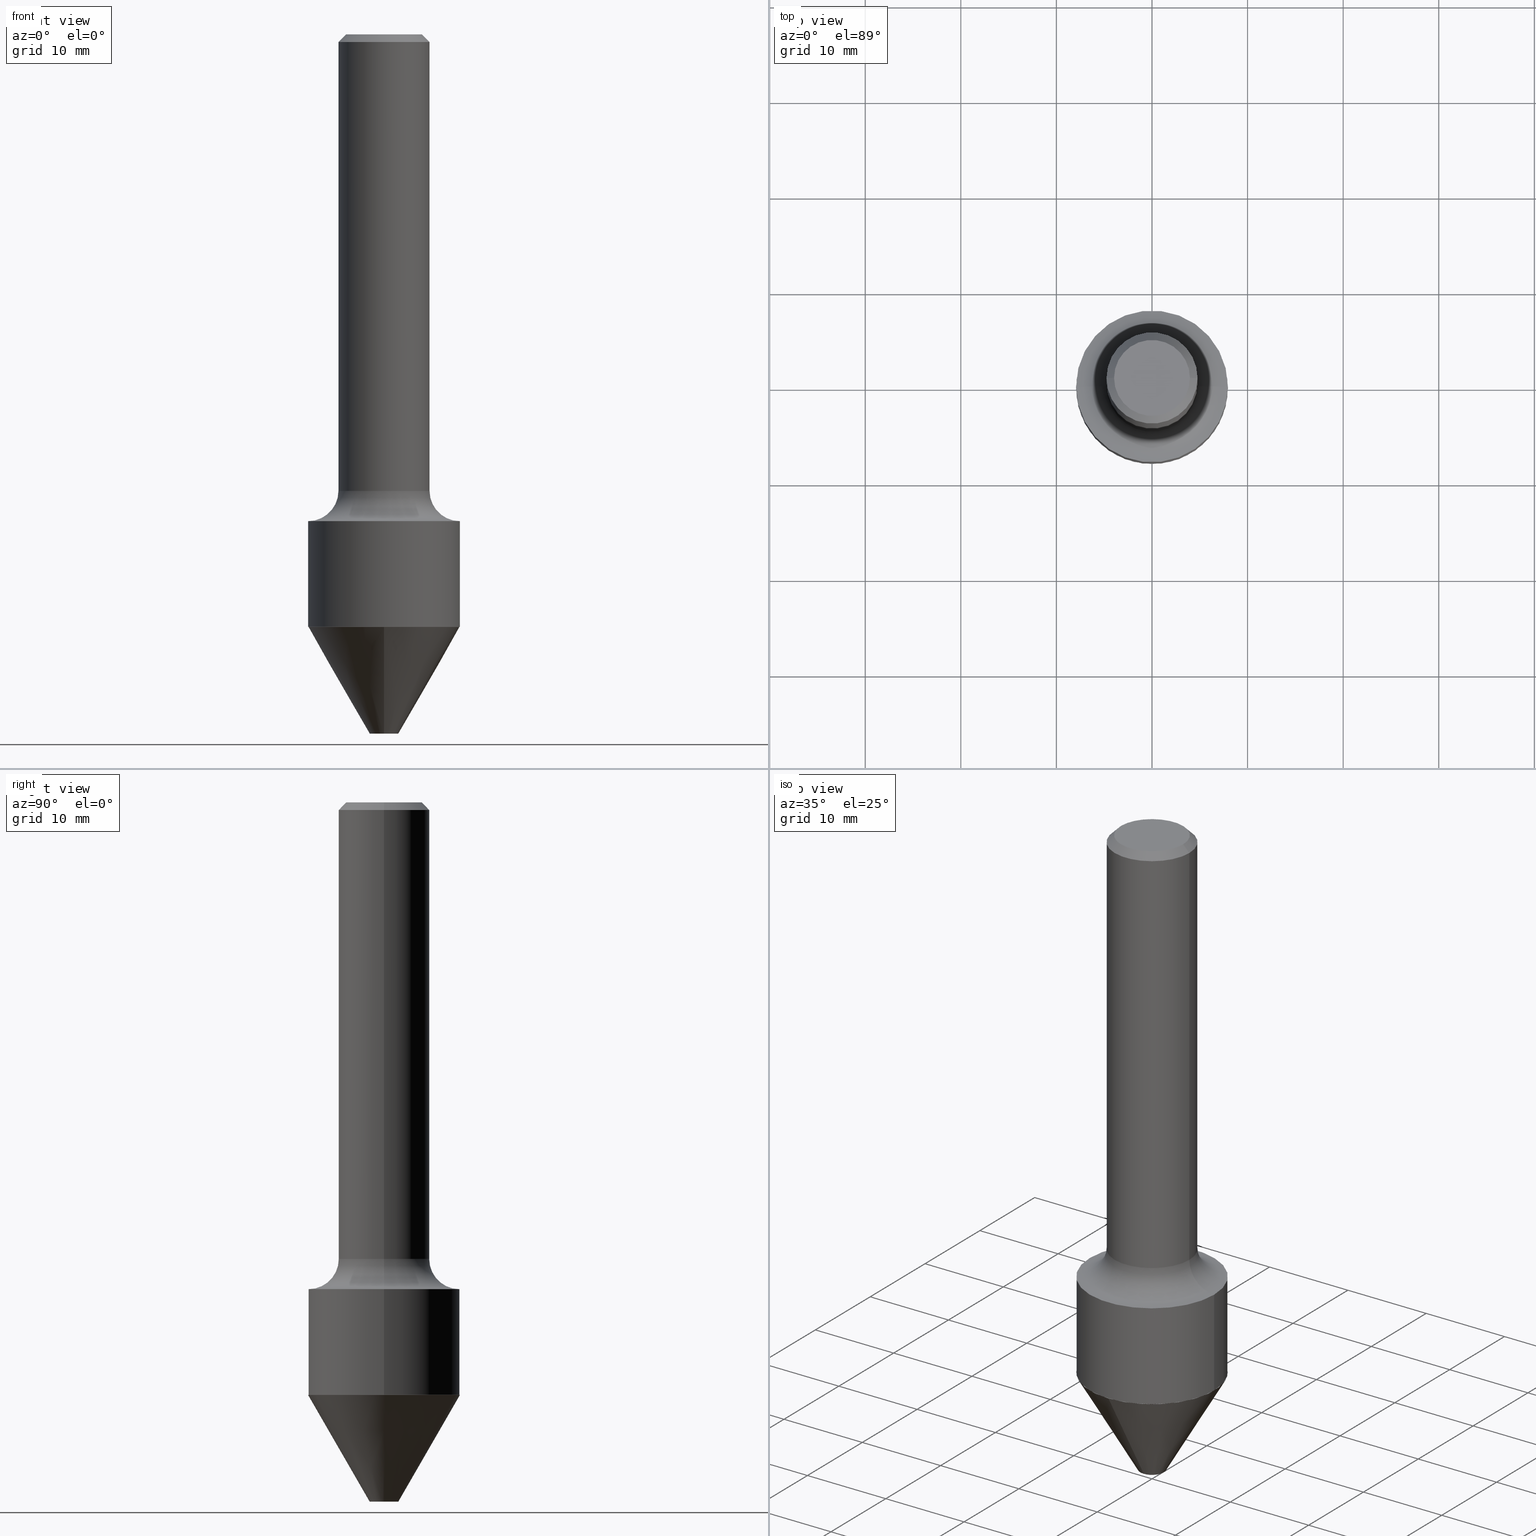
[diagram: canonical four-view strip — front | top / right | iso, engineering-drawing reading convention]
A machine part, canonical four-view strip (front | top / right | iso — engineering-drawing reading convention). The complete STEP part file that produces these views, byte-faithful:
ISO-10303-21;
HEADER;
FILE_DESCRIPTION (( 'STEP AP203' ),
    '1' );
FILE_NAME ('74140.STEP',
    '2025-06-20T12:29:15',
    ( '' ),
    ( '' ),
    'SwSTEP 2.0',
    'SolidWorks 2024',
    '' );
FILE_SCHEMA (( 'CONFIG_CONTROL_DESIGN' ));
ENDSEC;

DATA;
#1 = DIRECTION ( 'NONE',  ( 6.982962677686265922E-15, 1.000000000000000000, -3.502369222646490578E-15 ) ) ;
#2 = ORIENTED_EDGE ( 'NONE', *, *, #251, .F. ) ;
#3 = CONICAL_SURFACE ( 'NONE', #138, 0.3124999999999998335, 0.5235987755983375624 ) ;
#4 = EDGE_CURVE ( 'NONE', #167, #477, #267, .T. ) ;
#5 = CIRCLE ( 'NONE', #432, 0.1875000000000002498 ) ;
#6 = CYLINDRICAL_SURFACE ( 'NONE', #380, 0.1875000000000001110 ) ;
#7 = ORIENTED_EDGE ( 'NONE', *, *, #4, .T. ) ;
#8 = LINE ( 'NONE', #89, #111 ) ;
#9 = ORIENTED_EDGE ( 'NONE', *, *, #39, .T. ) ;
#10 = CARTESIAN_POINT ( 'NONE',  ( 7.629862675297681829E-31, -1.089342177719069380E-16, -0.03120000000000022755 ) ) ;
#11 = EDGE_LOOP ( 'NONE', ( #323, #367, #172, #216 ) ) ;
#12 = AXIS2_PLACEMENT_3D ( 'NONE', #452, #441, #250 ) ;
#13 = CARTESIAN_POINT ( 'NONE',  ( -1.871772216193331159E-46, 2.672394653685611172E-32, 7.654042494670965249E-18 ) ) ;
#14 = ORIENTED_EDGE ( 'NONE', *, *, #337, .T. ) ;
#15 = CC_DESIGN_DATE_AND_TIME_ASSIGNMENT ( #511, #105, ( #217 ) ) ;
#16 = DIRECTION ( 'NONE',  ( -6.982962677686265133E-15, -1.000000000000000000, 3.496765431890258892E-15 ) ) ;
#17 = CYLINDRICAL_SURFACE ( 'NONE', #213, 0.3125000000000000000 ) ;
#18 = EDGE_CURVE ( 'NONE', #94, #209, #230, .T. ) ;
#19 = FACE_OUTER_BOUND ( 'NONE', #132, .T. ) ;
#20 = VECTOR ( 'NONE', #169, 39.37007874015748143 ) ;
#21 = DATE_AND_TIME ( #419, #272 ) ;
#22 = AXIS2_PLACEMENT_3D ( 'NONE', #232, #158, #428 ) ;
#23 = CARTESIAN_POINT ( 'NONE',  ( 0.000000000000000000, 0.000000000000000000, 0.000000000000000000 ) ) ;
#24 = APPROVAL_ROLE ( '' ) ;
#25 = EDGE_CURVE ( 'NONE', #86, #493, #312, .T. ) ;
#26 = DIRECTION ( 'NONE',  ( 1.000000000000000000, -6.982962677686269077E-15, 0.000000000000000000 ) ) ;
#27 = CARTESIAN_POINT ( 'NONE',  ( 5.939732351074985838E-29, -8.564652793296501748E-15, -2.440925120281329797 ) ) ;
#28 = ORIENTED_EDGE ( 'NONE', *, *, #483, .T. ) ;
#29 = DATE_AND_TIME ( #190, #30 ) ;
#30 = LOCAL_TIME ( 8, 29, 15.00000000000000000, #244 ) ;
#31 = CIRCLE ( 'NONE', #139, 0.3120000000000000551 ) ;
#32 = DIRECTION ( 'NONE',  ( 1.000000000000000000, -6.982962677686269866E-15, 0.000000000000000000 ) ) ;
#33 = PRODUCT_DEFINITION_SHAPE ( 'NONE', 'NONE',  #302 ) ;
#34 = AXIS2_PLACEMENT_3D ( 'NONE', #507, #422, #345 ) ;
#35 = CC_DESIGN_PERSON_AND_ORGANIZATION_ASSIGNMENT ( #145, #225, ( #439 ) ) ;
#36 = DIRECTION ( 'NONE',  ( -2.534628000477946415E-29, 3.363800297989649412E-15, 1.000000000000000000 ) ) ;
#37 = ORIENTED_EDGE ( 'NONE', *, *, #462, .F. ) ;
#38 = CARTESIAN_POINT ( 'NONE',  ( 5.938465037074746188E-29, -8.562970893147506322E-15, -2.440425120281329630 ) ) ;
#39 = EDGE_CURVE ( 'NONE', #47, #362, #43, .T. ) ;
#40 = DIRECTION ( 'NONE',  ( -1.000000000000000000, 7.105427357601001859E-15, 0.000000000000000000 ) ) ;
#41 = CC_DESIGN_APPROVAL ( #222, ( #217 ) ) ;
#42 = DIRECTION ( 'NONE',  ( -1.000000000000000000, 6.982962677686265922E-15, 0.000000000000000000 ) ) ;
#43 = CIRCLE ( 'NONE', #393, 0.1249999999999996947 ) ;
#44 = CARTESIAN_POINT ( 'NONE',  ( -0.1875000000000000278, 1.200371284294268058E-15, -0.03120000000000022755 ) ) ;
#45 = ORIENTED_EDGE ( 'NONE', *, *, #483, .F. ) ;
#46 = DIRECTION ( 'NONE',  ( -2.445468806185136597E-29, 3.491481338843145583E-15, 1.000000000000000000 ) ) ;
#47 = VERTEX_POINT ( 'NONE', #186 ) ;
#48 = AXIS2_PLACEMENT_3D ( 'NONE', #178, #340, #26 ) ;
#49 = DIRECTION ( 'NONE',  ( 2.534628000477945855E-29, -3.363800297989649412E-15, -1.000000000000000000 ) ) ;
#50 = ORIENTED_EDGE ( 'NONE', *, *, #153, .F. ) ;
#51 = DIRECTION ( 'NONE',  ( 1.000000000000000000, -6.982962677686265133E-15, 0.000000000000000000 ) ) ;
#52 = VECTOR ( 'NONE', #226, 39.37007874015748143 ) ;
#53 = ORIENTED_EDGE ( 'NONE', *, *, #249, .F. ) ;
#54 = EDGE_CURVE ( 'NONE', #47, #96, #102, .T. ) ;
#55 = PLANE ( 'NONE',  #188 ) ;
#56 = ORIENTED_EDGE ( 'NONE', *, *, #488, .F. ) ;
#57 = AXIS2_PLACEMENT_3D ( 'NONE', #509, #278, #235 ) ;
#58 = APPROVAL_ROLE ( '' ) ;
#59 = DIRECTION ( 'NONE',  ( -2.445468806185136877E-29, 3.491481338843145188E-15, 1.000000000000000000 ) ) ;
#60 = ADVANCED_FACE ( 'NONE', ( #336 ), #309, .F. ) ;
#61 = DIRECTION ( 'NONE',  ( 2.534628000477945855E-29, -3.363800297989649412E-15, -1.000000000000000000 ) ) ;
#62 = ADVANCED_FACE ( 'NONE', ( #19 ), #100, .T. ) ;
#63 = DATE_AND_TIME ( #421, #313 ) ;
#64 = DIRECTION ( 'NONE',  ( -2.445468806185136597E-29, 3.491481338843145583E-15, 1.000000000000000000 ) ) ;
#65 = ADVANCED_FACE ( 'NONE', ( #346 ), #508, .T. ) ;
#66 = DIRECTION ( 'NONE',  ( 1.000000000000000000, -6.982962677686266711E-15, 4.876176775795936353E-29 ) ) ;
#67 = DIRECTION ( 'NONE',  ( 1.000000000000000000, 0.000000000000000000, 0.000000000000000000 ) ) ;
#68 = CARTESIAN_POINT ( 'NONE',  ( 2.178684355438174504E-15, 0.3119999999999915063, -2.440425120281330962 ) ) ;
#69 = DIRECTION ( 'NONE',  ( -6.982962677686265922E-15, -1.000000000000000000, 0.000000000000000000 ) ) ;
#70 = APPROVAL ( #456, 'UNSPECIFIED' ) ;
#71 = CIRCLE ( 'NONE', #113, 0.3120000000000000551 ) ;
#72 = DIRECTION ( 'NONE',  ( 1.000000000000000000, -6.982962677686266711E-15, 4.876046809215620980E-29 ) ) ;
#73 = DIRECTION ( 'NONE',  ( 1.000000000000000000, -6.982962677686269077E-15, 0.000000000000000000 ) ) ;
#74 = EDGE_LOOP ( 'NONE', ( #236, #7, #405, #331 ) ) ;
#75 = AXIS2_PLACEMENT_3D ( 'NONE', #23, #182, #137 ) ;
#76 = DIRECTION ( 'NONE',  ( 1.000000000000000000, -6.982962677686269866E-15, 0.000000000000000000 ) ) ;
#77 = ORIENTED_EDGE ( 'NONE', *, *, #350, .T. ) ;
#78 = COORDINATED_UNIVERSAL_TIME_OFFSET ( 5, 0, .BEHIND. ) ;
#79 = FACE_OUTER_BOUND ( 'NONE', #258, .T. ) ;
#80 = VECTOR ( 'NONE', #93, 39.37007874015748143 ) ;
#81 = LINE ( 'NONE', #44, #80 ) ;
#82 = FACE_OUTER_BOUND ( 'NONE', #240, .T. ) ;
#83 = ORIENTED_EDGE ( 'NONE', *, *, #159, .T. ) ;
#84 = CC_DESIGN_PERSON_AND_ORGANIZATION_ASSIGNMENT ( #351, #435, ( #217 ) ) ;
#85 = DIRECTION ( 'NONE',  ( -2.445468806185136597E-29, 3.491481338843145583E-15, 1.000000000000000000 ) ) ;
#86 = VERTEX_POINT ( 'NONE', #104 ) ;
#87 = CONICAL_SURFACE ( 'NONE', #130, 0.3120000000000000551, 0.7853981633970383847 ) ;
#88 = CIRCLE ( 'NONE', #506, 0.05899999999999981648 ) ;
#89 = CARTESIAN_POINT ( 'NONE',  ( 0.3120000000000000551, -1.069938312174441774E-14, -2.440425120281329630 ) ) ;
#90 = ADVANCED_FACE ( 'NONE', ( #424 ), #92, .T. ) ;
#91 = VERTEX_POINT ( 'NONE', #274 ) ;
#92 = CONICAL_SURFACE ( 'NONE', #283, 0.3124999999999998335, 0.5235987755983375624 ) ;
#93 = DIRECTION ( 'NONE',  ( -0.7071067811865444641, 2.468850131082224717E-15, -0.7071067811865505703 ) ) ;
#94 = VERTEX_POINT ( 'NONE', #144 ) ;
#95 = FACE_OUTER_BOUND ( 'NONE', #334, .T. ) ;
#96 = VERTEX_POINT ( 'NONE', #377 ) ;
#97 = AXIS2_PLACEMENT_3D ( 'NONE', #324, #239, #72 ) ;
#98 = DATE_AND_TIME ( #335, #148 ) ;
#99 = ORIENTED_EDGE ( 'NONE', *, *, #151, .F. ) ;
#100 = CONICAL_SURFACE ( 'NONE', #193, 0.3120000000000000551, 0.7853981633977896726 ) ;
#101 = DIRECTION ( 'NONE',  ( -2.445468806185136597E-29, 3.491481338843145583E-15, 1.000000000000000000 ) ) ;
#102 = LINE ( 'NONE', #187, #168 ) ;
#103 = CONICAL_SURFACE ( 'NONE', #448, 0.3120000000000000551, 0.7853981633970383847 ) ;
#104 = CARTESIAN_POINT ( 'NONE',  ( -0.3120000000000000551, -6.301156203560677438E-15, -2.440425120281329630 ) ) ;
#105 = DATE_TIME_ROLE ( 'classification_date' ) ;
#106 = DIRECTION ( 'NONE',  ( 1.000000000000000000, -6.982962677686265133E-15, 0.000000000000000000 ) ) ;
#107 = APPROVAL ( #140, 'UNSPECIFIED' ) ;
#108 = DIRECTION ( 'NONE',  ( -2.445468806185136597E-29, 3.491481338843145583E-15, 1.000000000000000000 ) ) ;
#109 = EDGE_CURVE ( 'NONE', #327, #294, #427, .T. ) ;
#110 = SHAPE_DEFINITION_REPRESENTATION ( #33, #277 ) ;
#111 = VECTOR ( 'NONE', #253, 39.37007874015748143 ) ;
#112 = EDGE_CURVE ( 'NONE', #398, #362, #343, .T. ) ;
#113 = AXIS2_PLACEMENT_3D ( 'NONE', #285, #436, #76 ) ;
#114 = DIRECTION ( 'NONE',  ( -6.982962677686265922E-15, -1.000000000000000000, 0.000000000000000000 ) ) ;
#115 = DIRECTION ( 'NONE',  ( 1.000000000000000000, -6.982962677686265922E-15, 0.000000000000000000 ) ) ;
#116 = ORIENTED_EDGE ( 'NONE', *, *, #303, .T. ) ;
#117 = ADVANCED_FACE ( 'NONE', ( #378 ), #418, .T. ) ;
#118 = DIRECTION ( 'NONE',  ( -2.445468806185136597E-29, 3.491481338843145583E-15, 1.000000000000000000 ) ) ;
#119 = ORIENTED_EDGE ( 'NONE', *, *, #350, .F. ) ;
#120 = CARTESIAN_POINT ( 'NONE',  ( 0.3125000000000000000, -1.070112886241384003E-14, -2.439925120281329907 ) ) ;
#121 = AXIS2_PLACEMENT_3D ( 'NONE', #391, #475, #114 ) ;
#122 = DIRECTION ( 'NONE',  ( -2.445468806185136597E-29, 3.491481338843145583E-15, 1.000000000000000000 ) ) ;
#123 = ORIENTED_EDGE ( 'NONE', *, *, #153, .T. ) ;
#124 = ADVANCED_FACE ( 'NONE', ( #342 ), #17, .T. ) ;
#125 = CLOSED_SHELL ( 'NONE', ( #392, #205, #62, #124, #451, #227, #117, #173, #444, #273, #65, #480 ) ) ;
#126 = DIRECTION ( 'NONE',  ( 1.000000000000000000, -6.982962677686265922E-15, 0.000000000000000000 ) ) ;
#127 = ORIENTED_EDGE ( 'NONE', *, *, #366, .F. ) ;
#128 = CARTESIAN_POINT ( 'NONE',  ( 5.967983505478601309E-29, -8.520698766306300822E-15, -2.440425120281329630 ) ) ;
#129 = ORIENTED_EDGE ( 'NONE', *, *, #358, .F. ) ;
#130 = AXIS2_PLACEMENT_3D ( 'NONE', #368, #291, #413 ) ;
#131 = DIRECTION ( 'NONE',  ( 6.982962677686265922E-15, 1.000000000000000000, -3.363800297989649412E-15 ) ) ;
#132 = EDGE_LOOP ( 'NONE', ( #298, #292, #119, #296 ) ) ;
#133 = AXIS2_PLACEMENT_3D ( 'NONE', #150, #64, #381 ) ;
#134 = LENGTH_MEASURE_WITH_UNIT ( LENGTH_MEASURE( 0.02539999999999999897 ), #262 );
#135 = EDGE_LOOP ( 'NONE', ( #260, #485, #252, #196 ) ) ;
#136 = CARTESIAN_POINT ( 'NONE',  ( 0.3120000000000000551, -1.069938312174441774E-14, -2.440425120281329630 ) ) ;
#137 = DIRECTION ( 'NONE',  ( 1.000000000000000000, -6.982962677686266711E-15, 4.876176775795936353E-29 ) ) ;
#138 = AXIS2_PLACEMENT_3D ( 'NONE', #27, #494, #181 ) ;
#139 = AXIS2_PLACEMENT_3D ( 'NONE', #38, #197, #157 ) ;
#140 = APPROVAL_STATUS ( 'not_yet_approved' ) ;
#141 = EDGE_CURVE ( 'NONE', #362, #398, #237, .T. ) ;
#142 = CARTESIAN_POINT ( 'NONE',  ( -0.1875000000000001110, 1.332267629550188637E-15, -9.223003294227953596E-30 ) ) ;
#143 = CARTESIAN_POINT ( 'NONE',  ( 5.939732351074985838E-29, -8.564652793296501748E-15, -2.440925120281329797 ) ) ;
#144 = CARTESIAN_POINT ( 'NONE',  ( -2.142190499804100313E-15, -0.3120000000000086038, -2.440425120281328741 ) ) ;
#145 = PERSON_AND_ORGANIZATION ( #238, #199 ) ;
#146 = CARTESIAN_POINT ( 'NONE',  ( -2.140475375304658544E-15, -0.3120000000000086038, -2.440425120281328741 ) ) ;
#147 = CC_DESIGN_APPROVAL ( #107, ( #439 ) ) ;
#148 = LOCAL_TIME ( 8, 29, 15.00000000000000000, #220 ) ;
#149 = PERSON_AND_ORGANIZATION ( #238, #199 ) ;
#150 = CARTESIAN_POINT ( 'NONE',  ( 4.903164956401198966E-29, -7.000420084380507779E-15, -2.004999999999999893 ) ) ;
#151 = EDGE_CURVE ( 'NONE', #500, #86, #408, .T. ) ;
#152 = FACE_OUTER_BOUND ( 'NONE', #164, .T. ) ;
#153 = EDGE_CURVE ( 'NONE', #395, #91, #88, .T. ) ;
#154 = CARTESIAN_POINT ( 'NONE',  ( 1.091437066522363671E-15, 0.1563000000000000500, -5.418915120138483345E-16 ) ) ;
#155 = EDGE_LOOP ( 'NONE', ( #369, #176, #513, #243 ) ) ;
#156 = AXIS2_PLACEMENT_3D ( 'NONE', #13, #122, #402 ) ;
#157 = DIRECTION ( 'NONE',  ( -6.982962677686265922E-15, -1.000000000000000000, 3.502369222646490578E-15 ) ) ;
#158 = DIRECTION ( 'NONE',  ( -2.445468806185136597E-29, 3.491481338843145583E-15, 1.000000000000000000 ) ) ;
#159 = EDGE_CURVE ( 'NONE', #410, #96, #354, .T. ) ;
#160 = DIRECTION ( 'NONE',  ( 7.105427357601001859E-15, 1.000000000000000000, -3.491481338843145583E-15 ) ) ;
#161 = MANIFOLD_SOLID_BREP ( 'Body-Move/Copy2[2]', #125 ) ;
#162 = ORIENTED_EDGE ( 'NONE', *, *, #390, .T. ) ;
#163 = CARTESIAN_POINT ( 'NONE',  ( -0.3125000000000000000, -4.779974035130193909E-15, -2.004999999999999893 ) ) ;
#164 = EDGE_LOOP ( 'NONE', ( #442, #83, #256, #37 ) ) ;
#165 = MANIFOLD_SOLID_BREP ( 'Body-Move/Copy2[1]', #352 ) ;
#166 = CARTESIAN_POINT ( 'NONE',  ( 0.3125000000000000000, -2.182175836776958347E-15, 1.523805242436230075E-29 ) ) ;
#167 = VERTEX_POINT ( 'NONE', #388 ) ;
#168 = VECTOR ( 'NONE', #420, 39.37007874015748143 ) ;
#169 = DIRECTION ( 'NONE',  ( -2.445468806185136877E-29, 3.491481338843145188E-15, 1.000000000000000000 ) ) ;
#170 = ORIENTED_EDGE ( 'NONE', *, *, #18, .F. ) ;
#171 = FACE_OUTER_BOUND ( 'NONE', #447, .T. ) ;
#172 = ORIENTED_EDGE ( 'NONE', *, *, #358, .T. ) ;
#173 = ADVANCED_FACE ( 'NONE', ( #316 ), #325, .T. ) ;
#174 = DIRECTION ( 'NONE',  ( 1.000000000000000000, -6.982962677686266711E-15, 4.876176775795935793E-29 ) ) ;
#175 = ORIENTED_EDGE ( 'NONE', *, *, #384, .F. ) ;
#176 = ORIENTED_EDGE ( 'NONE', *, *, #210, .T. ) ;
#177 = APPLICATION_PROTOCOL_DEFINITION ( 'international standard', 'config_control_design', 1994, #183 ) ;
#178 = CARTESIAN_POINT ( 'NONE',  ( 4.903164956401198966E-29, -7.000420084380507779E-15, -2.004999999999999893 ) ) ;
#179 = PRODUCT_RELATED_PRODUCT_CATEGORY ( 'detail', '', ( #317 ) ) ;
#180 = CIRCLE ( 'NONE', #97, 0.1563000000000000500 ) ;
#181 = DIRECTION ( 'NONE',  ( -6.982962677686265133E-15, -1.000000000000000000, 3.496765431890258892E-15 ) ) ;
#182 = DIRECTION ( 'NONE',  ( -2.445468806185136597E-29, 3.491481338843145583E-15, 1.000000000000000000 ) ) ;
#183 = APPLICATION_CONTEXT ( 'configuration controlled 3d designs of mechanical parts and assemblies' ) ;
#184 = EDGE_CURVE ( 'NONE', #410, #290, #180, .T. ) ;
#185 = COORDINATED_UNIVERSAL_TIME_OFFSET ( 5, 0, .BEHIND. ) ;
#186 = CARTESIAN_POINT ( 'NONE',  ( 0.1875000000000002498, -7.873290419091291906E-15, -1.880000000000000338 ) ) ;
#187 = CARTESIAN_POINT ( 'NONE',  ( 0.1875000000000001110, -1.309305502066175797E-15, 9.142831454617385217E-30 ) ) ;
#188 = AXIS2_PLACEMENT_3D ( 'NONE', #409, #49, #131 ) ;
#189 = AXIS2_PLACEMENT_3D ( 'NONE', #469, #400, #42 ) ;
#190 = CALENDAR_DATE ( 2025, 20, 6 ) ;
#191 = LINE ( 'NONE', #357, #472 ) ;
#192 = ORIENTED_EDGE ( 'NONE', *, *, #141, .F. ) ;
#193 = AXIS2_PLACEMENT_3D ( 'NONE', #383, #101, #271 ) ;
#194 = PERSON_AND_ORGANIZATION ( #238, #199 ) ;
#195 = CARTESIAN_POINT ( 'NONE',  ( 4.597481355628058013E-29, -6.563984917025115320E-15, -1.880000000000000338 ) ) ;
#196 = ORIENTED_EDGE ( 'NONE', *, *, #401, .F. ) ;
#197 = DIRECTION ( 'NONE',  ( -2.534628000477946415E-29, 3.363800297989649412E-15, 1.000000000000000000 ) ) ;
#198 = ORIENTED_EDGE ( 'NONE', *, *, #18, .T. ) ;
#199 = ORGANIZATION ( 'UNSPECIFIED', 'UNSPECIFIED', '' ) ;
#200 = CARTESIAN_POINT ( 'NONE',  ( 5.967983505478601309E-29, -8.520698766306300822E-15, -2.440425120281329630 ) ) ;
#201 = CARTESIAN_POINT ( 'NONE',  ( -2.182175836776896816E-15, -0.3125000000000083267, -2.440925120281328908 ) ) ;
#202 = EDGE_CURVE ( 'NONE', #493, #398, #191, .T. ) ;
#203 = DIRECTION ( 'NONE',  ( -2.445468806185136597E-29, 3.491481338843145583E-15, 1.000000000000000000 ) ) ;
#204 = EDGE_LOOP ( 'NONE', ( #127, #412, #14, #56 ) ) ;
#205 = ADVANCED_FACE ( 'NONE', ( #152 ), #457, .T. ) ;
#206 = LINE ( 'NONE', #328, #489 ) ;
#207 = APPROVAL_PERSON_ORGANIZATION ( #338, #107, #24 ) ;
#208 = CIRCLE ( 'NONE', #389, 0.1875000000000000278 ) ;
#209 = VERTEX_POINT ( 'NONE', #201 ) ;
#210 = EDGE_CURVE ( 'NONE', #167, #398, #321, .T. ) ;
#211 = LINE ( 'NONE', #166, #20 ) ;
#212 = ORIENTED_EDGE ( 'NONE', *, *, #159, .F. ) ;
#213 = AXIS2_PLACEMENT_3D ( 'NONE', #502, #386, #66 ) ;
#214 = EDGE_CURVE ( 'NONE', #493, #403, #341, .T. ) ;
#215 = FACE_OUTER_BOUND ( 'NONE', #74, .T. ) ;
#216 = ORIENTED_EDGE ( 'NONE', *, *, #112, .F. ) ;
#217 = SECURITY_CLASSIFICATION ( '', '', #314 ) ;
#218 = ORIENTED_EDGE ( 'NONE', *, *, #109, .F. ) ;
#219 = CIRCLE ( 'NONE', #417, 0.3124999999999998335 ) ;
#220 = COORDINATED_UNIVERSAL_TIME_OFFSET ( 5, 0, .BEHIND. ) ;
#221 = DIRECTION ( 'NONE',  ( 6.982962677686265922E-15, 1.000000000000000000, -3.363800297989649412E-15 ) ) ;
#222 = APPROVAL ( #515, 'UNSPECIFIED' ) ;
#223 = DATE_TIME_ROLE ( 'creation_date' ) ;
#224 = DIRECTION ( 'NONE',  ( -2.534628000477946415E-29, 3.363800297989649412E-15, 1.000000000000000000 ) ) ;
#225 = PERSON_AND_ORGANIZATION_ROLE ( 'creator' ) ;
#226 = DIRECTION ( 'NONE',  ( -0.7071067811867889352, 7.493145998871226640E-15, 0.7071067811863060992 ) ) ;
#227 = ADVANCED_FACE ( 'NONE', ( #79 ), #440, .F. ) ;
#228 = APPROVAL_PERSON_ORGANIZATION ( #194, #222, #387 ) ;
#229 = PERSON_AND_ORGANIZATION_ROLE ( 'design_owner' ) ;
#230 = LINE ( 'NONE', #146, #360 ) ;
#231 = DIRECTION ( 'NONE',  ( 4.937700262162524614E-15, 0.7071067811862553620, -0.7071067811868396724 ) ) ;
#232 = CARTESIAN_POINT ( 'NONE',  ( 5.967983505478601309E-29, -8.520698766306300822E-15, -2.440425120281329630 ) ) ;
#233 = CIRCLE ( 'NONE', #406, 0.1875000000000000278 ) ;
#234 = AXIS2_PLACEMENT_3D ( 'NONE', #438, #108, #106 ) ;
#235 = DIRECTION ( 'NONE',  ( 1.000000000000000000, -6.982962677686265133E-15, 4.883557194083112340E-29 ) ) ;
#236 = ORIENTED_EDGE ( 'NONE', *, *, #284, .T. ) ;
#237 = CIRCLE ( 'NONE', #48, 0.3125000000000000000 ) ;
#238 = PERSON ( 'UNSPECIFIED', 'UNSPECIFIED', 'UNSPECIFIED', ('UNSPECIFIED'), ('UNSPECIFIED'), ('UNSPECIFIED') ) ;
#239 = DIRECTION ( 'NONE',  ( -2.445468806185136597E-29, 3.491481338843145583E-15, 1.000000000000000000 ) ) ;
#240 = EDGE_LOOP ( 'NONE', ( #99, #375 ) ) ;
#241 = AXIS2_PLACEMENT_3D ( 'NONE', #465, #61, #221 ) ;
#242 = CARTESIAN_POINT ( 'NONE',  ( 2.220446049250370273E-15, 0.3124999999999912847, -2.440925120281331129 ) ) ;
#243 = ORIENTED_EDGE ( 'NONE', *, *, #39, .F. ) ;
#244 = COORDINATED_UNIVERSAL_TIME_OFFSET ( 5, 0, .BEHIND. ) ;
#245 = APPROVAL_PERSON_ORGANIZATION ( #344, #70, #58 ) ;
#246 = DIRECTION ( 'NONE',  ( 1.000000000000000000, -6.982962677686269077E-15, 0.000000000000000000 ) ) ;
#247 = DIMENSIONAL_EXPONENTS ( 1.000000000000000000, 0.000000000000000000, 0.000000000000000000, 0.000000000000000000, 0.000000000000000000, 0.000000000000000000, 0.000000000000000000 ) ;
#248 = CARTESIAN_POINT ( 'NONE',  ( 0.000000000000000000, 0.000000000000000000, 0.000000000000000000 ) ) ;
#249 = EDGE_CURVE ( 'NONE', #91, #395, #499, .T. ) ;
#250 = DIRECTION ( 'NONE',  ( 1.000000000000000000, -6.982962677686265133E-15, 4.883557194083112340E-29 ) ) ;
#251 = EDGE_CURVE ( 'NONE', #209, #294, #219, .T. ) ;
#252 = ORIENTED_EDGE ( 'NONE', *, *, #54, .T. ) ;
#253 = DIRECTION ( 'NONE',  ( 0.7071067811867889352, -2.468850131084785360E-15, 0.7071067811863060992 ) ) ;
#254 = AXIS2_PLACEMENT_3D ( 'NONE', #376, #426, #67 ) ;
#255 = AXIS2_PLACEMENT_3D ( 'NONE', #348, #160, #40 ) ;
#256 = ORIENTED_EDGE ( 'NONE', *, *, #307, .T. ) ;
#257 = CARTESIAN_POINT ( 'NONE',  ( 5.938465037074746188E-29, -8.562970893147506322E-15, -2.440425120281329630 ) ) ;
#258 = EDGE_LOOP ( 'NONE', ( #333, #445, #9, #355 ) ) ;
#259 = CARTESIAN_POINT ( 'NONE',  ( 0.000000000000000000, 0.000000000000000000, 0.000000000000000000 ) ) ;
#260 = ORIENTED_EDGE ( 'NONE', *, *, #4, .F. ) ;
#261 = EDGE_CURVE ( 'NONE', #167, #47, #306, .T. ) ;
#262 =( LENGTH_UNIT ( ) NAMED_UNIT ( * ) SI_UNIT ( $, .METRE. ) );
#263 = AXIS2_PLACEMENT_3D ( 'NONE', #268, #423, #311 ) ;
#264 = CARTESIAN_POINT ( 'NONE',  ( 5.939732351074985838E-29, -8.564652793296501748E-15, -2.440925120281329797 ) ) ;
#265 = AXIS2_PLACEMENT_3D ( 'NONE', #154, #510, #319 ) ;
#266 = PERSON_AND_ORGANIZATION_ROLE ( 'creator' ) ;
#267 = LINE ( 'NONE', #142, #299 ) ;
#268 = CARTESIAN_POINT ( 'NONE',  ( 5.938465037074746188E-29, -8.562970893147506322E-15, -2.440425120281329630 ) ) ;
#269 = CARTESIAN_POINT ( 'NONE',  ( -0.3120000000000000551, -6.303805430734787850E-15, -2.440425120281329630 ) ) ;
#270 = MECHANICAL_CONTEXT ( 'NONE', #183, 'mechanical' ) ;
#271 = DIRECTION ( 'NONE',  ( 1.000000000000000000, -6.982962677686269866E-15, 0.000000000000000000 ) ) ;
#272 = LOCAL_TIME ( 8, 29, 15.00000000000000000, #460 ) ;
#273 = ADVANCED_FACE ( 'NONE', ( #517 ), #353, .F. ) ;
#274 = CARTESIAN_POINT ( 'NONE',  ( 1.319833131674450179E-15, 0.05899999999998977590, -2.880000000000000782 ) ) ;
#275 = APPROVAL_DATE_TIME ( #29, #222 ) ;
#276 = CARTESIAN_POINT ( 'NONE',  ( 7.052623835516416387E-29, -1.004161300453393756E-14, -2.880000000000000782 ) ) ;
#277 = ADVANCED_BREP_SHAPE_REPRESENTATION ( '74140', ( #165, #161, #254 ), #431 ) ;
#278 = DIRECTION ( 'NONE',  ( -2.445468806185136597E-29, 3.491481338843145583E-15, 1.000000000000000000 ) ) ;
#279 = CIRCLE ( 'NONE', #263, 0.3120000000000000551 ) ;
#280 = CC_DESIGN_PERSON_AND_ORGANIZATION_ASSIGNMENT ( #501, #266, ( #302 ) ) ;
#281 = AXIS2_PLACEMENT_3D ( 'NONE', #200, #118, #32 ) ;
#282 = DIRECTION ( 'NONE',  ( -2.445468806185136597E-29, 3.491481338843145583E-15, 1.000000000000000000 ) ) ;
#283 = AXIS2_PLACEMENT_3D ( 'NONE', #264, #224, #495 ) ;
#284 = EDGE_CURVE ( 'NONE', #47, #167, #5, .T. ) ;
#285 = CARTESIAN_POINT ( 'NONE',  ( 5.967983505478601309E-29, -8.520698766306300822E-15, -2.440425120281329630 ) ) ;
#286 = ORIENTED_EDGE ( 'NONE', *, *, #25, .F. ) ;
#287 = DIRECTION ( 'NONE',  ( -6.982962677686265133E-15, -1.000000000000000000, 3.496765431890258892E-15 ) ) ;
#288 = CIRCLE ( 'NONE', #399, 0.3124999999999998335 ) ;
#289 = DIRECTION ( 'NONE',  ( 1.000000000000000000, -6.982962677686265922E-15, 4.876176775795935793E-29 ) ) ;
#290 = VERTEX_POINT ( 'NONE', #394 ) ;
#291 = DIRECTION ( 'NONE',  ( 2.534628000477946415E-29, -3.363800297989649412E-15, -1.000000000000000000 ) ) ;
#292 = ORIENTED_EDGE ( 'NONE', *, *, #25, .T. ) ;
#293 = DIRECTION ( 'NONE',  ( 2.534628000477946415E-29, -3.363800297989649412E-15, -1.000000000000000000 ) ) ;
#294 = VERTEX_POINT ( 'NONE', #242 ) ;
#295 = FACE_OUTER_BOUND ( 'NONE', #155, .T. ) ;
#296 = ORIENTED_EDGE ( 'NONE', *, *, #390, .F. ) ;
#297 = DIRECTION ( 'NONE',  ( -2.438088387897960049E-29, 3.491481338843145188E-15, 1.000000000000000000 ) ) ;
#298 = ORIENTED_EDGE ( 'NONE', *, *, #151, .T. ) ;
#299 = VECTOR ( 'NONE', #59, 39.37007874015748143 ) ;
#300 = DIRECTION ( 'NONE',  ( -2.534628000477946415E-29, 3.363800297989649412E-15, 1.000000000000000000 ) ) ;
#301 = ORIENTED_EDGE ( 'NONE', *, *, #303, .F. ) ;
#302 = PRODUCT_DEFINITION ( 'UNKNOWN', '', #439, #370 ) ;
#303 = EDGE_CURVE ( 'NONE', #94, #327, #31, .T. ) ;
#304 = AXIS2_PLACEMENT_3D ( 'NONE', #128, #297, #289 ) ;
#305 = DIRECTION ( 'NONE',  ( -4.851104656538974768E-15, -0.7071067811862600250, -0.7071067811868350095 ) ) ;
#306 = CIRCLE ( 'NONE', #479, 0.1875000000000002498 ) ;
#307 = EDGE_CURVE ( 'NONE', #96, #477, #208, .T. ) ;
#308 = DIRECTION ( 'NONE',  ( -6.982962677686266711E-15, -1.000000000000000000, 3.491481338843145583E-15 ) ) ;
#309 = PLANE ( 'NONE',  #241 ) ;
#310 = EDGE_CURVE ( 'NONE', #86, #500, #71, .T. ) ;
#311 = DIRECTION ( 'NONE',  ( -6.982962677686265922E-15, -1.000000000000000000, 3.502369222646490578E-15 ) ) ;
#312 = LINE ( 'NONE', #269, #52 ) ;
#313 = LOCAL_TIME ( 8, 29, 15.00000000000000000, #185 ) ;
#314 = SECURITY_CLASSIFICATION_LEVEL ( 'unclassified' ) ;
#315 = ORIENTED_EDGE ( 'NONE', *, *, #184, .T. ) ;
#316 = FACE_OUTER_BOUND ( 'NONE', #455, .T. ) ;
#317 = PRODUCT ( '74140', '74140', '', ( #270 ) ) ;
#318 = CC_DESIGN_PERSON_AND_ORGANIZATION_ASSIGNMENT ( #454, #229, ( #317 ) ) ;
#319 = DIRECTION ( 'NONE',  ( -1.000000000000000000, 6.982962677686265922E-15, -4.876176775795935793E-29 ) ) ;
#320 = ORIENTED_EDGE ( 'NONE', *, *, #109, .T. ) ;
#321 = CIRCLE ( 'NONE', #255, 0.1249999999999996947 ) ;
#322 = CARTESIAN_POINT ( 'NONE',  ( 7.629862675297681829E-31, -1.089342177719069380E-16, -0.03120000000000022755 ) ) ;
#323 = ORIENTED_EDGE ( 'NONE', *, *, #202, .F. ) ;
#324 = CARTESIAN_POINT ( 'NONE',  ( -1.871772216193331159E-46, 2.672394653685611172E-32, 7.654042494670965249E-18 ) ) ;
#325 = CONICAL_SURFACE ( 'NONE', #281, 0.3120000000000000551, 0.7853981633977896726 ) ;
#326 = LINE ( 'NONE', #411, #364 ) ;
#327 = VERTEX_POINT ( 'NONE', #446 ) ;
#328 = CARTESIAN_POINT ( 'NONE',  ( 2.220446049250370273E-15, 0.3124999999999912847, -2.440925120281331129 ) ) ;
#329 = ORIENTED_EDGE ( 'NONE', *, *, #310, .T. ) ;
#330 = CARTESIAN_POINT ( 'NONE',  ( 5.966760771075509629E-29, -8.518953025636881685E-15, -2.439925120281329907 ) ) ;
#331 = ORIENTED_EDGE ( 'NONE', *, *, #54, .F. ) ;
#332 = CARTESIAN_POINT ( 'NONE',  ( -4.119947979834178963E-16, -0.05900000000000985706, -2.880000000000000782 ) ) ;
#333 = ORIENTED_EDGE ( 'NONE', *, *, #210, .F. ) ;
#334 = EDGE_LOOP ( 'NONE', ( #123, #491, #2, #458 ) ) ;
#335 = CALENDAR_DATE ( 2025, 20, 6 ) ;
#336 = FACE_OUTER_BOUND ( 'NONE', #487, .T. ) ;
#337 = EDGE_CURVE ( 'NONE', #395, #209, #326, .T. ) ;
#338 = PERSON_AND_ORGANIZATION ( #238, #199 ) ;
#339 = CIRCLE ( 'NONE', #356, 0.3125000000000000000 ) ;
#340 = DIRECTION ( 'NONE',  ( -2.445468806185136597E-29, 3.491481338843145583E-15, 1.000000000000000000 ) ) ;
#341 = CIRCLE ( 'NONE', #234, 0.3125000000000000000 ) ;
#342 = FACE_OUTER_BOUND ( 'NONE', #414, .T. ) ;
#343 = CIRCLE ( 'NONE', #133, 0.3125000000000000000 ) ;
#344 = PERSON_AND_ORGANIZATION ( #238, #199 ) ;
#345 = DIRECTION ( 'NONE',  ( -1.000000000000000000, 6.982962677686265922E-15, 0.000000000000000000 ) ) ;
#346 = FACE_OUTER_BOUND ( 'NONE', #437, .T. ) ;
#347 = VECTOR ( 'NONE', #433, 39.37007874015748143 ) ;
#348 = CARTESIAN_POINT ( 'NONE',  ( -0.3125000000000000000, -4.343538867774801451E-15, -1.880000000000000338 ) ) ;
#349 = ORIENTED_EDGE ( 'NONE', *, *, #384, .T. ) ;
#350 = EDGE_CURVE ( 'NONE', #403, #493, #339, .T. ) ;
#351 = PERSON_AND_ORGANIZATION ( #238, #199 ) ;
#352 = CLOSED_SHELL ( 'NONE', ( #396, #514, #60, #425, #90, #429 ) ) ;
#353 = PLANE ( 'NONE',  #265 ) ;
#354 = LINE ( 'NONE', #516, #347 ) ;
#355 = ORIENTED_EDGE ( 'NONE', *, *, #141, .T. ) ;
#356 = AXIS2_PLACEMENT_3D ( 'NONE', #330, #85, #51 ) ;
#357 = CARTESIAN_POINT ( 'NONE',  ( -0.3125000000000000000, 2.220446049250313081E-15, -1.537167215704658232E-29 ) ) ;
#358 = EDGE_CURVE ( 'NONE', #403, #362, #211, .T. ) ;
#359 = CARTESIAN_POINT ( 'NONE',  ( 5.939732351074985838E-29, -8.564652793296501748E-15, -2.440925120281329797 ) ) ;
#360 = VECTOR ( 'NONE', #305, 39.37007874015748143 ) ;
#361 = DIRECTION ( 'NONE',  ( -3.491481338843389735E-15, -0.5000000000000306422, 0.8660254037844209440 ) ) ;
#362 = VERTEX_POINT ( 'NONE', #481 ) ;
#363 = AXIS2_PLACEMENT_3D ( 'NONE', #259, #46, #174 ) ;
#364 = VECTOR ( 'NONE', #361, 39.37007874015748143 ) ;
#365 = FACE_OUTER_BOUND ( 'NONE', #471, .T. ) ;
#366 = EDGE_CURVE ( 'NONE', #91, #294, #206, .T. ) ;
#367 = ORIENTED_EDGE ( 'NONE', *, *, #214, .T. ) ;
#368 = CARTESIAN_POINT ( 'NONE',  ( 5.938465037074746188E-29, -8.562970893147506322E-15, -2.440425120281329630 ) ) ;
#369 = ORIENTED_EDGE ( 'NONE', *, *, #261, .F. ) ;
#370 = DESIGN_CONTEXT ( 'detailed design', #466, 'design' ) ;
#371 = CYLINDRICAL_SURFACE ( 'NONE', #363, 0.1875000000000001110 ) ;
#372 = ORIENTED_EDGE ( 'NONE', *, *, #401, .T. ) ;
#373 = CC_DESIGN_APPROVAL ( #70, ( #302 ) ) ;
#374 = FACE_OUTER_BOUND ( 'NONE', #135, .T. ) ;
#375 = ORIENTED_EDGE ( 'NONE', *, *, #310, .F. ) ;
#376 = CARTESIAN_POINT ( 'NONE',  ( 0.000000000000000000, 0.000000000000000000, 0.000000000000000000 ) ) ;
#377 = CARTESIAN_POINT ( 'NONE',  ( 0.1875000000000000278, -1.395277592354069315E-15, -0.03120000000000022755 ) ) ;
#378 = FACE_OUTER_BOUND ( 'NONE', #11, .T. ) ;
#379 =( NAMED_UNIT ( * ) SI_UNIT ( $, .STERADIAN. ) SOLID_ANGLE_UNIT ( ) );
#380 = AXIS2_PLACEMENT_3D ( 'NONE', #248, #203, #404 ) ;
#381 = DIRECTION ( 'NONE',  ( 1.000000000000000000, -6.982962677686269077E-15, 0.000000000000000000 ) ) ;
#382 = APPROVAL_DATE_TIME ( #98, #70 ) ;
#383 = CARTESIAN_POINT ( 'NONE',  ( 5.967983505478601309E-29, -8.520698766306300822E-15, -2.440425120281329630 ) ) ;
#384 = EDGE_CURVE ( 'NONE', #290, #410, #478, .T. ) ;
#385 = CARTESIAN_POINT ( 'NONE',  ( -0.3125000000000000000, -5.539240505758381256E-15, -2.439925120281329907 ) ) ;
#386 = DIRECTION ( 'NONE',  ( -2.445468806185136597E-29, 3.491481338843145583E-15, 1.000000000000000000 ) ) ;
#387 = APPROVAL_ROLE ( '' ) ;
#388 = CARTESIAN_POINT ( 'NONE',  ( -0.1875000000000002498, -5.005845661302559902E-15, -1.880000000000000338 ) ) ;
#389 = AXIS2_PLACEMENT_3D ( 'NONE', #322, #473, #115 ) ;
#390 = EDGE_CURVE ( 'NONE', #500, #403, #8, .T. ) ;
#391 = CARTESIAN_POINT ( 'NONE',  ( 7.052623835516416387E-29, -1.004161300453393756E-14, -2.880000000000000782 ) ) ;
#392 = ADVANCED_FACE ( 'NONE', ( #215 ), #371, .T. ) ;
#393 = AXIS2_PLACEMENT_3D ( 'NONE', #463, #308, #461 ) ;
#394 = CARTESIAN_POINT ( 'NONE',  ( -0.1563000000000000500, 1.145904175408315963E-15, 7.654042494663141351E-18 ) ) ;
#395 = VERTEX_POINT ( 'NONE', #332 ) ;
#396 = ADVANCED_FACE ( 'NONE', ( #490 ), #103, .T. ) ;
#397 = DIRECTION ( 'NONE',  ( -2.445468806185136597E-29, 3.491481338843145583E-15, 1.000000000000000000 ) ) ;
#398 = VERTEX_POINT ( 'NONE', #163 ) ;
#399 = AXIS2_PLACEMENT_3D ( 'NONE', #143, #300, #16 ) ;
#400 = DIRECTION ( 'NONE',  ( 2.445468806185136597E-29, -3.491481338843145583E-15, -1.000000000000000000 ) ) ;
#401 = EDGE_CURVE ( 'NONE', #477, #96, #233, .T. ) ;
#402 = DIRECTION ( 'NONE',  ( 1.000000000000000000, -6.982962677686266711E-15, 4.876046809215620980E-29 ) ) ;
#403 = VERTEX_POINT ( 'NONE', #120 ) ;
#404 = DIRECTION ( 'NONE',  ( 1.000000000000000000, -6.982962677686266711E-15, 4.876176775795935793E-29 ) ) ;
#405 = ORIENTED_EDGE ( 'NONE', *, *, #307, .F. ) ;
#406 = AXIS2_PLACEMENT_3D ( 'NONE', #10, #443, #126 ) ;
#407 = UNCERTAINTY_MEASURE_WITH_UNIT (LENGTH_MEASURE( 1.000000000000000082E-05 ), #416, 'distance_accuracy_value', 'NONE');
#408 = CIRCLE ( 'NONE', #22, 0.3120000000000000551 ) ;
#409 = CARTESIAN_POINT ( 'NONE',  ( -1.158078225612057275E-28, -3.672571107537022027E-14, -2.880000000000000338 ) ) ;
#410 = VERTEX_POINT ( 'NONE', #476 ) ;
#411 = CARTESIAN_POINT ( 'NONE',  ( -2.182175836776897210E-15, -0.3125000000000083267, -2.440925120281328908 ) ) ;
#412 = ORIENTED_EDGE ( 'NONE', *, *, #249, .T. ) ;
#413 = DIRECTION ( 'NONE',  ( 6.982962677686265922E-15, 1.000000000000000000, -3.502369222646490578E-15 ) ) ;
#414 = EDGE_LOOP ( 'NONE', ( #77, #450, #192, #129 ) ) ;
#415 = CC_DESIGN_SECURITY_CLASSIFICATION ( #217, ( #439 ) ) ;
#416 =( CONVERSION_BASED_UNIT ( 'INCH', #134 ) LENGTH_UNIT ( ) NAMED_UNIT ( #247 ) );
#417 = AXIS2_PLACEMENT_3D ( 'NONE', #359, #36, #287 ) ;
#418 = CYLINDRICAL_SURFACE ( 'NONE', #75, 0.3125000000000000000 ) ;
#419 = CALENDAR_DATE ( 2025, 20, 6 ) ;
#420 = DIRECTION ( 'NONE',  ( -2.445468806185136877E-29, 3.491481338843145188E-15, 1.000000000000000000 ) ) ;
#421 = CALENDAR_DATE ( 2025, 20, 6 ) ;
#422 = DIRECTION ( 'NONE',  ( 2.445468806185136597E-29, -3.491481338843145583E-15, -1.000000000000000000 ) ) ;
#423 = DIRECTION ( 'NONE',  ( -2.534628000477946415E-29, 3.363800297989649412E-15, 1.000000000000000000 ) ) ;
#424 = FACE_OUTER_BOUND ( 'NONE', #204, .T. ) ;
#425 = ADVANCED_FACE ( 'NONE', ( #171 ), #55, .T. ) ;
#426 = DIRECTION ( 'NONE',  ( 0.000000000000000000, 0.000000000000000000, 1.000000000000000000 ) ) ;
#427 = LINE ( 'NONE', #68, #492 ) ;
#428 = DIRECTION ( 'NONE',  ( 1.000000000000000000, -6.982962677686269866E-15, 0.000000000000000000 ) ) ;
#429 = ADVANCED_FACE ( 'NONE', ( #365 ), #87, .T. ) ;
#430 = DIRECTION ( 'NONE',  ( -2.534628000477946415E-29, 3.363800297989649412E-15, 1.000000000000000000 ) ) ;
#431 =( GEOMETRIC_REPRESENTATION_CONTEXT ( 3 ) GLOBAL_UNCERTAINTY_ASSIGNED_CONTEXT ( ( #407 ) ) GLOBAL_UNIT_ASSIGNED_CONTEXT ( ( #416, #464, #379 ) ) REPRESENTATION_CONTEXT ( 'NONE', 'WORKASPACE' ) );
#432 = AXIS2_PLACEMENT_3D ( 'NONE', #470, #282, #73 ) ;
#433 = DIRECTION ( 'NONE',  ( 0.7071067811865444641, -7.319954787623245001E-15, -0.7071067811865505703 ) ) ;
#434 = ORIENTED_EDGE ( 'NONE', *, *, #462, .T. ) ;
#435 = PERSON_AND_ORGANIZATION_ROLE ( 'classification_officer' ) ;
#436 = DIRECTION ( 'NONE',  ( -2.445468806185136597E-29, 3.491481338843145583E-15, 1.000000000000000000 ) ) ;
#437 = EDGE_LOOP ( 'NONE', ( #212, #175, #434, #372 ) ) ;
#438 = CARTESIAN_POINT ( 'NONE',  ( 5.966760771075509629E-29, -8.518953025636881685E-15, -2.439925120281329907 ) ) ;
#439 = PRODUCT_DEFINITION_FORMATION_WITH_SPECIFIED_SOURCE ( 'ANY', '', #317, .NOT_KNOWN. ) ;
#440 = TOROIDAL_SURFACE ( 'NONE', #57, 0.3125000000000000000, 0.1249999999999996947 ) ;
#441 = DIRECTION ( 'NONE',  ( -2.445468806185136597E-29, 3.491481338843145583E-15, 1.000000000000000000 ) ) ;
#442 = ORIENTED_EDGE ( 'NONE', *, *, #184, .F. ) ;
#443 = DIRECTION ( 'NONE',  ( -2.445468806185136597E-29, 3.491481338843145583E-15, 1.000000000000000000 ) ) ;
#444 = ADVANCED_FACE ( 'NONE', ( #82 ), #486, .F. ) ;
#445 = ORIENTED_EDGE ( 'NONE', *, *, #284, .F. ) ;
#446 = CARTESIAN_POINT ( 'NONE',  ( 2.180430096107595219E-15, 0.3119999999999915063, -2.440425120281330962 ) ) ;
#447 = EDGE_LOOP ( 'NONE', ( #50, #53 ) ) ;
#448 = AXIS2_PLACEMENT_3D ( 'NONE', #257, #293, #1 ) ;
#449 = CARTESIAN_POINT ( 'NONE',  ( -0.1875000000000000278, 1.200371284294268058E-15, -0.03120000000000022755 ) ) ;
#450 = ORIENTED_EDGE ( 'NONE', *, *, #202, .T. ) ;
#451 = ADVANCED_FACE ( 'NONE', ( #295 ), #505, .F. ) ;
#452 = CARTESIAN_POINT ( 'NONE',  ( 4.597481355628058013E-29, -6.563984917025115320E-15, -1.880000000000000338 ) ) ;
#453 = EDGE_LOOP ( 'NONE', ( #301, #198, #482, #218 ) ) ;
#454 = PERSON_AND_ORGANIZATION ( #238, #199 ) ;
#455 = EDGE_LOOP ( 'NONE', ( #286, #329, #162, #518 ) ) ;
#456 = APPROVAL_STATUS ( 'not_yet_approved' ) ;
#457 = CONICAL_SURFACE ( 'NONE', #189, 0.1875000000000000278, 0.7853981633974439491 ) ;
#458 = ORIENTED_EDGE ( 'NONE', *, *, #337, .F. ) ;
#459 = CC_DESIGN_PERSON_AND_ORGANIZATION_ASSIGNMENT ( #149, #474, ( #439 ) ) ;
#460 = COORDINATED_UNIVERSAL_TIME_OFFSET ( 5, 0, .BEHIND. ) ;
#461 = DIRECTION ( 'NONE',  ( 1.000000000000000000, -6.982962677686265133E-15, 0.000000000000000000 ) ) ;
#462 = EDGE_CURVE ( 'NONE', #290, #477, #81, .T. ) ;
#463 = CARTESIAN_POINT ( 'NONE',  ( 0.3125000000000000000, -8.746160753802073667E-15, -1.880000000000000338 ) ) ;
#464 =( NAMED_UNIT ( * ) PLANE_ANGLE_UNIT ( ) SI_UNIT ( $, .RADIAN. ) );
#465 = CARTESIAN_POINT ( 'NONE',  ( 5.967983505478601309E-29, -8.520698766306300822E-15, -2.440425120281329630 ) ) ;
#466 = APPLICATION_CONTEXT ( 'configuration controlled 3d designs of mechanical parts and assemblies' ) ;
#467 = EDGE_LOOP ( 'NONE', ( #349, #315 ) ) ;
#468 = CALENDAR_DATE ( 2025, 20, 6 ) ;
#469 = CARTESIAN_POINT ( 'NONE',  ( 7.629862675297681829E-31, -1.089342177719069380E-16, -0.03120000000000022755 ) ) ;
#470 = CARTESIAN_POINT ( 'NONE',  ( 4.597481355628058013E-29, -6.563984917025115320E-15, -1.880000000000000338 ) ) ;
#471 = EDGE_LOOP ( 'NONE', ( #170, #45, #320, #504 ) ) ;
#472 = VECTOR ( 'NONE', #512, 39.37007874015748143 ) ;
#473 = DIRECTION ( 'NONE',  ( -2.445468806185136597E-29, 3.491481338843145583E-15, 1.000000000000000000 ) ) ;
#474 = PERSON_AND_ORGANIZATION_ROLE ( 'design_supplier' ) ;
#475 = DIRECTION ( 'NONE',  ( -2.534628000477946415E-29, 3.363800297989649412E-15, 1.000000000000000000 ) ) ;
#476 = CARTESIAN_POINT ( 'NONE',  ( 0.1563000000000000500, -1.233786714702880152E-15, 7.654042494679095754E-18 ) ) ;
#477 = VERTEX_POINT ( 'NONE', #449 ) ;
#478 = CIRCLE ( 'NONE', #156, 0.1563000000000000500 ) ;
#479 = AXIS2_PLACEMENT_3D ( 'NONE', #195, #397, #246 ) ;
#480 = ADVANCED_FACE ( 'NONE', ( #374 ), #6, .T. ) ;
#481 = CARTESIAN_POINT ( 'NONE',  ( 0.3125000000000000000, -9.182595921157466915E-15, -2.004999999999999893 ) ) ;
#482 = ORIENTED_EDGE ( 'NONE', *, *, #251, .T. ) ;
#483 = EDGE_CURVE ( 'NONE', #327, #94, #279, .T. ) ;
#484 = DIRECTION ( 'NONE',  ( 3.552713678800715500E-15, 0.5000000000000364153, 0.8660254037844175024 ) ) ;
#485 = ORIENTED_EDGE ( 'NONE', *, *, #261, .T. ) ;
#486 = PLANE ( 'NONE',  #304 ) ;
#487 = EDGE_LOOP ( 'NONE', ( #28, #116 ) ) ;
#488 = EDGE_CURVE ( 'NONE', #294, #209, #288, .T. ) ;
#489 = VECTOR ( 'NONE', #484, 39.37007874015748854 ) ;
#490 = FACE_OUTER_BOUND ( 'NONE', #453, .T. ) ;
#491 = ORIENTED_EDGE ( 'NONE', *, *, #366, .T. ) ;
#492 = VECTOR ( 'NONE', #231, 39.37007874015748143 ) ;
#493 = VERTEX_POINT ( 'NONE', #385 ) ;
#494 = DIRECTION ( 'NONE',  ( -2.534628000477946415E-29, 3.363800297989649412E-15, 1.000000000000000000 ) ) ;
#495 = DIRECTION ( 'NONE',  ( -6.982962677686265133E-15, -1.000000000000000000, 3.496765431890258892E-15 ) ) ;
#496 = CC_DESIGN_DATE_AND_TIME_ASSIGNMENT ( #21, #223, ( #302 ) ) ;
#497 = LOCAL_TIME ( 8, 29, 15.00000000000000000, #78 ) ;
#498 = APPLICATION_PROTOCOL_DEFINITION ( 'international standard', 'config_control_design', 1994, #466 ) ;
#499 = CIRCLE ( 'NONE', #121, 0.05899999999999981648 ) ;
#500 = VERTEX_POINT ( 'NONE', #136 ) ;
#501 = PERSON_AND_ORGANIZATION ( #238, #199 ) ;
#502 = CARTESIAN_POINT ( 'NONE',  ( 0.000000000000000000, 0.000000000000000000, 0.000000000000000000 ) ) ;
#503 = APPROVAL_DATE_TIME ( #63, #107 ) ;
#504 = ORIENTED_EDGE ( 'NONE', *, *, #488, .T. ) ;
#505 = TOROIDAL_SURFACE ( 'NONE', #12, 0.3125000000000000000, 0.1249999999999996947 ) ;
#506 = AXIS2_PLACEMENT_3D ( 'NONE', #276, #430, #69 ) ;
#507 = CARTESIAN_POINT ( 'NONE',  ( 7.629862675297681829E-31, -1.089342177719069380E-16, -0.03120000000000022755 ) ) ;
#508 = CONICAL_SURFACE ( 'NONE', #34, 0.1875000000000000278, 0.7853981633974439491 ) ;
#509 = CARTESIAN_POINT ( 'NONE',  ( 4.597481355628058013E-29, -6.563984917025115320E-15, -1.880000000000000338 ) ) ;
#510 = DIRECTION ( 'NONE',  ( 2.438088387897960049E-29, -3.491481338843145188E-15, -1.000000000000000000 ) ) ;
#511 = DATE_AND_TIME ( #468, #497 ) ;
#512 = DIRECTION ( 'NONE',  ( -2.445468806185136877E-29, 3.491481338843145188E-15, 1.000000000000000000 ) ) ;
#513 = ORIENTED_EDGE ( 'NONE', *, *, #112, .T. ) ;
#514 = ADVANCED_FACE ( 'NONE', ( #95 ), #3, .T. ) ;
#515 = APPROVAL_STATUS ( 'not_yet_approved' ) ;
#516 = CARTESIAN_POINT ( 'NONE',  ( 0.1875000000000000278, -1.395277592354069315E-15, -0.03120000000000022755 ) ) ;
#517 = FACE_OUTER_BOUND ( 'NONE', #467, .T. ) ;
#518 = ORIENTED_EDGE ( 'NONE', *, *, #214, .F. ) ;
ENDSEC;
END-ISO-10303-21;
